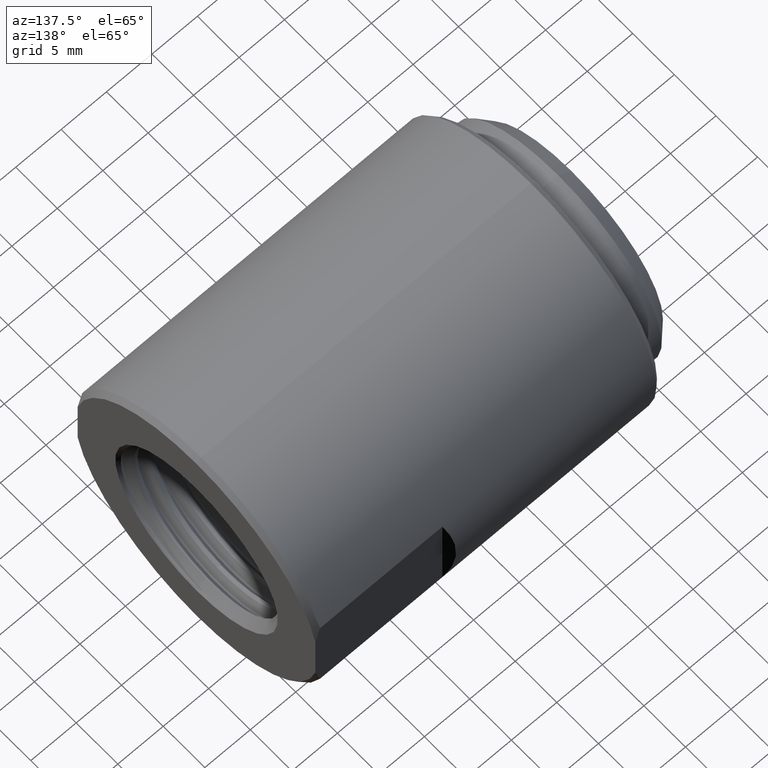
[diagram: clean part render]
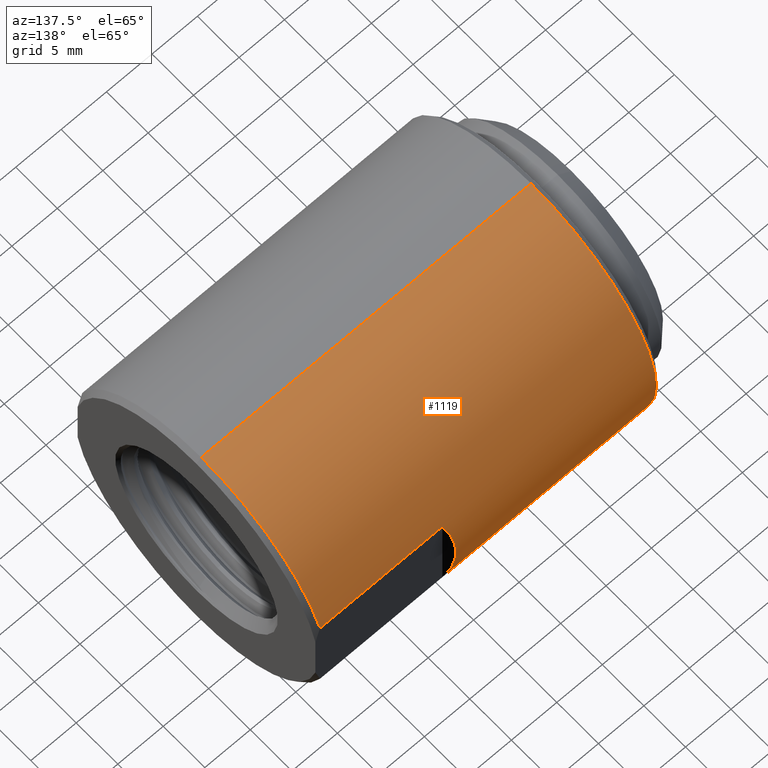
[diagram: same view with one face highlighted and labeled with its STEP entity id]
A machine part, auxiliary view. The second image highlights one B-rep face of the part: STEP entity #1119.
In plain terms, the highlighted cylindrical surface (partial cylindrical patch) has radius 15.0825 mm, axis along (-1, -0, -0).
Its self-contained STEP definition (entity closure, byte-faithful):
#567 = DIRECTION ( 'NONE',  ( 1.000000000000000000, 0.0000000000000000000, 0.0000000000000000000 ) ) ;
#643 = LINE ( 'NONE', #5098, #1541 ) ;
#680 = AXIS2_PLACEMENT_3D ( 'NONE', #1563, #5281, #2413 ) ;
#687 = LINE ( 'NONE', #11913, #3422 ) ;
#800 = EDGE_CURVE ( 'NONE', #1075, #10357, #687, .T. ) ;
#812 = CARTESIAN_POINT ( 'NONE',  ( 0.6999999999999999556, 0.5623000000000000220, 0.1908327802029828602 ) ) ;
#944 = EDGE_CURVE ( 'NONE', #1075, #11117, #7690, .T. ) ;
#1035 = ORIENTED_EDGE ( 'NONE', *, *, #9156, .T. ) ;
#1075 = VERTEX_POINT ( 'NONE', #3650 ) ;
#1119 = ADVANCED_FACE ( 'NONE', ( #7244 ), #10167, .T. ) ;
#1277 = EDGE_LOOP ( 'NONE', ( #1035, #10917, #6437, #11037, #4450, #6891, #3082, #6486 ) ) ;
#1415 = DIRECTION ( 'NONE',  ( -1.000000000000000000, -0.0000000000000000000, -0.0000000000000000000 ) ) ;
#1541 = VECTOR ( 'NONE', #1624, 39.37007874015748143 ) ;
#1563 = CARTESIAN_POINT ( 'NONE',  ( 1.229999999999999982, 0.0000000000000000000, 0.0000000000000000000 ) ) ;
#1624 = DIRECTION ( 'NONE',  ( -1.000000000000000000, -0.0000000000000000000, -0.0000000000000000000 ) ) ;
#1667 = CARTESIAN_POINT ( 'NONE',  ( 0.6999999999999999556, 0.5623000000000000220, 0.1908327802029828602 ) ) ;
#1786 = CARTESIAN_POINT ( 'NONE',  ( 0.6576150488826814078, 0.6046849511173182368, 0.06594303124099847035 ) ) ;
#1930 = AXIS2_PLACEMENT_3D ( 'NONE', #6389, #2500, #9943 ) ;
#2358 = EDGE_CURVE ( 'NONE', #4063, #6965, #7846, .T. ) ;
#2413 = DIRECTION ( 'NONE',  ( 0.0000000000000000000, 0.0000000000000000000, 1.000000000000000000 ) ) ;
#2416 = CARTESIAN_POINT ( 'NONE',  ( -0.1995000000000000939, 0.0000000000000000000, 0.5937999999999999945 ) ) ;
#2500 = DIRECTION ( 'NONE',  ( -1.000000000000000000, -0.0000000000000000000, -0.0000000000000000000 ) ) ;
#2984 = DIRECTION ( 'NONE',  ( -1.000000000000000000, -0.0000000000000000000, -0.0000000000000000000 ) ) ;
#3082 = ORIENTED_EDGE ( 'NONE', *, *, #11358, .F. ) ;
#3422 = VECTOR ( 'NONE', #9170, 39.37007874015748143 ) ;
#3650 = CARTESIAN_POINT ( 'NONE',  ( 1.229999999999999982, 0.0000000000000000000, 0.5937999999999999945 ) ) ;
#3801 = CARTESIAN_POINT ( 'NONE',  ( 0.6999999999999999556, 0.5623000000000000220, -0.1908327802029828602 ) ) ;
#3986 = DIRECTION ( 'NONE',  ( 0.0000000000000000000, 0.0000000000000000000, 1.000000000000000000 ) ) ;
#4063 = VERTEX_POINT ( 'NONE', #10812 ) ;
#4080 = CARTESIAN_POINT ( 'NONE',  ( 0.0000000000000000000, 0.5623000000000000220, -0.1908327802029828879 ) ) ;
#4450 = ORIENTED_EDGE ( 'NONE', *, *, #944, .T. ) ;
#4475 = CARTESIAN_POINT ( 'NONE',  ( 0.6576150488826814078, 0.6046849511173182368, -0.06594303124099809565 ) ) ;
#4664 = CIRCLE ( 'NONE', #1930, 0.5937999999999999945 ) ;
#5098 = CARTESIAN_POINT ( 'NONE',  ( 0.0000000000000000000, 7.271952693336982773E-17, -0.5937999999999999945 ) ) ;
#5231 = AXIS2_PLACEMENT_3D ( 'NONE', #5869, #1415, #3986 ) ;
#5281 = DIRECTION ( 'NONE',  ( -1.000000000000000000, -0.0000000000000000000, -0.0000000000000000000 ) ) ;
#5415 = DIRECTION ( 'NONE',  ( 0.0000000000000000000, 0.0000000000000000000, 1.000000000000000000 ) ) ;
#5670 = VERTEX_POINT ( 'NONE', #1667 ) ;
#5869 = CARTESIAN_POINT ( 'NONE',  ( 1.229999999999999982, 0.0000000000000000000, 0.0000000000000000000 ) ) ;
#6298 = CARTESIAN_POINT ( 'NONE',  ( 0.0000000000000000000, 0.5623000000000000220, 0.1908327802029828879 ) ) ;
#6384 = VERTEX_POINT ( 'NONE', #6550 ) ;
#6389 = CARTESIAN_POINT ( 'NONE',  ( -0.1995000000000000939, 0.0000000000000000000, 0.0000000000000000000 ) ) ;
#6437 = ORIENTED_EDGE ( 'NONE', *, *, #10633, .F. ) ;
#6486 = ORIENTED_EDGE ( 'NONE', *, *, #2358, .F. ) ;
#6550 = CARTESIAN_POINT ( 'NONE',  ( -0.1995000000000000939, 7.271952693336982773E-17, -0.5937999999999999945 ) ) ;
#6891 = ORIENTED_EDGE ( 'NONE', *, *, #11246, .F. ) ;
#6921 = VERTEX_POINT ( 'NONE', #9591 ) ;
#6965 = VERTEX_POINT ( 'NONE', #8440 ) ;
#7042 =( BOUNDED_CURVE ( )  B_SPLINE_CURVE ( 3, ( #3801, #4475, #1786, #812 ),
 .UNSPECIFIED., .F., .T. ) 
 B_SPLINE_CURVE_WITH_KNOTS ( ( 4, 4 ),
 ( 5.956003607072745787, 6.610367007286427565 ),
 .UNSPECIFIED. ) 
 CURVE ( )  GEOMETRIC_REPRESENTATION_ITEM ( )  RATIONAL_B_SPLINE_CURVE ( ( 1.000000000000000000, 0.9646345570899292898, 0.9646345570899292898, 1.000000000000000000 ) ) 
 REPRESENTATION_ITEM ( '' )  );
#7244 = FACE_OUTER_BOUND ( 'NONE', #1277, .T. ) ;
#7690 = CIRCLE ( 'NONE', #680, 0.5937999999999999945 ) ;
#7846 = LINE ( 'NONE', #4080, #8683 ) ;
#8155 = CIRCLE ( 'NONE', #5231, 0.5937999999999999945 ) ;
#8407 = DIRECTION ( 'NONE',  ( -1.000000000000000000, -0.0000000000000000000, -0.0000000000000000000 ) ) ;
#8440 = CARTESIAN_POINT ( 'NONE',  ( 0.6999999999999999556, 0.5623000000000000220, -0.1908327802029828602 ) ) ;
#8683 = VECTOR ( 'NONE', #2984, 39.37007874015748143 ) ;
#8877 = LINE ( 'NONE', #6298, #10315 ) ;
#9156 = EDGE_CURVE ( 'NONE', #4063, #6921, #8155, .T. ) ;
#9170 = DIRECTION ( 'NONE',  ( -1.000000000000000000, -0.0000000000000000000, -0.0000000000000000000 ) ) ;
#9551 = CARTESIAN_POINT ( 'NONE',  ( 1.229999999999999982, 0.5623000000000000220, 0.1908327802029828879 ) ) ;
#9591 = CARTESIAN_POINT ( 'NONE',  ( 1.229999999999999982, 7.271952693336982773E-17, -0.5937999999999999945 ) ) ;
#9841 = AXIS2_PLACEMENT_3D ( 'NONE', #10225, #8407, #5415 ) ;
#9943 = DIRECTION ( 'NONE',  ( 0.0000000000000000000, 0.0000000000000000000, 1.000000000000000000 ) ) ;
#10167 = CYLINDRICAL_SURFACE ( 'NONE', #9841, 0.5937999999999999945 ) ;
#10225 = CARTESIAN_POINT ( 'NONE',  ( 0.0000000000000000000, 0.0000000000000000000, 0.0000000000000000000 ) ) ;
#10294 = EDGE_CURVE ( 'NONE', #6921, #6384, #643, .T. ) ;
#10315 = VECTOR ( 'NONE', #567, 39.37007874015748143 ) ;
#10357 = VERTEX_POINT ( 'NONE', #2416 ) ;
#10633 = EDGE_CURVE ( 'NONE', #10357, #6384, #4664, .T. ) ;
#10812 = CARTESIAN_POINT ( 'NONE',  ( 1.229999999999999982, 0.5623000000000000220, -0.1908327802029828879 ) ) ;
#10917 = ORIENTED_EDGE ( 'NONE', *, *, #10294, .T. ) ;
#11037 = ORIENTED_EDGE ( 'NONE', *, *, #800, .F. ) ;
#11117 = VERTEX_POINT ( 'NONE', #9551 ) ;
#11246 = EDGE_CURVE ( 'NONE', #5670, #11117, #8877, .T. ) ;
#11358 = EDGE_CURVE ( 'NONE', #6965, #5670, #7042, .T. ) ;
#11913 = CARTESIAN_POINT ( 'NONE',  ( 0.0000000000000000000, 0.0000000000000000000, 0.5937999999999999945 ) ) ;